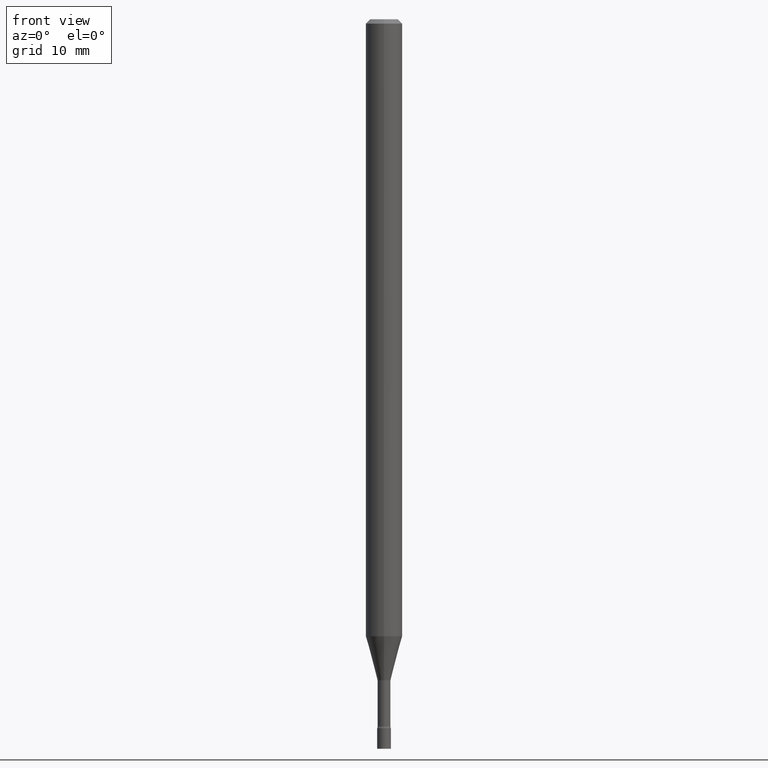
[diagram: clean part render]
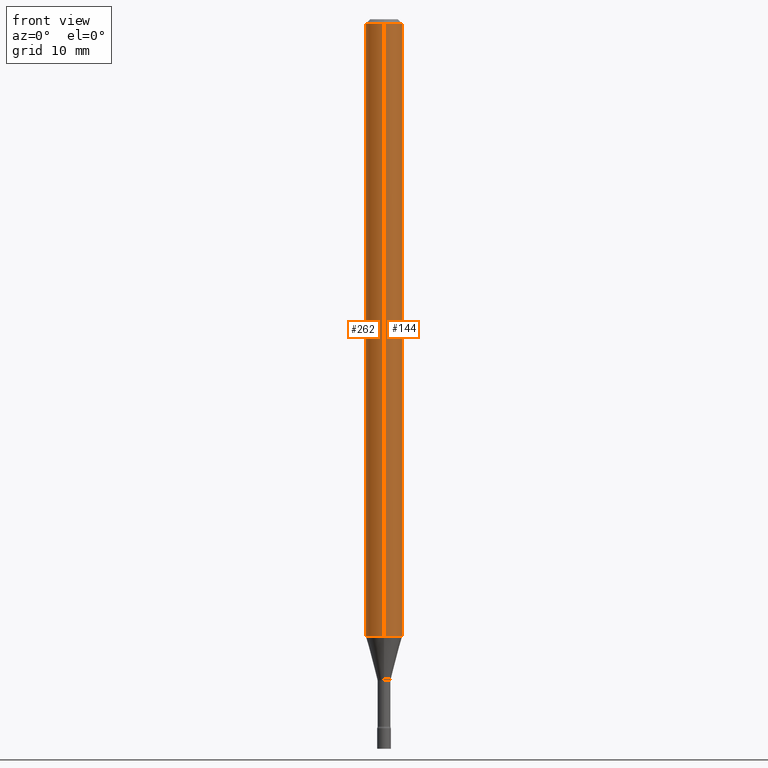
[diagram: same view with one multi-face feature highlighted, each face labeled with its STEP entity id]
A machine part, front view. The highlighted faces form ONE feature: a constant-radius fillet chain: 2 tangent blend faces with common blend radius 1.5875 mm. The faces share edges in the B-rep.
Their STEP definitions:
[1] entity #262 (Cylinder):
#9 = CARTESIAN_POINT ( 'NONE',  ( -4.364351673553912750E-16, -0.06250000000000005551, -0.01499999999999981209 ) ) ;
#38 = AXIS2_PLACEMENT_3D ( 'NONE', #363, #236, #398 ) ;
#92 = EDGE_CURVE ( 'NONE', #407, #179, #97, .T. ) ;
#96 = DIRECTION ( 'NONE',  ( -2.445459864664737566E-29, 3.491494143609276390E-15, 1.000000000000000000 ) ) ;
#97 = CIRCLE ( 'NONE', #38, 0.06250000000000000000 ) ;
#134 = CARTESIAN_POINT ( 'NONE',  ( 4.440892098501140893E-16, 0.06249999999999258926, -2.114225147374217961 ) ) ;
#136 = LINE ( 'NONE', #409, #454 ) ;
#140 = CYLINDRICAL_SURFACE ( 'NONE', #483, 0.06250000000000000000 ) ;
#151 = EDGE_CURVE ( 'NONE', #301, #407, #161, .T. ) ;
#159 = ORIENTED_EDGE ( 'NONE', *, *, #290, .T. ) ;
#161 = LINE ( 'NONE', #356, #437 ) ;
#170 = DIRECTION ( 'NONE',  ( -2.445459864664737566E-29, 3.491494143609276784E-15, 1.000000000000000000 ) ) ;
#179 = VERTEX_POINT ( 'NONE', #9 ) ;
#207 = DIRECTION ( 'NONE',  ( -6.982962677686265922E-15, -1.000000000000000000, 4.370956789862821150E-15 ) ) ;
#211 = CARTESIAN_POINT ( 'NONE',  ( 5.170252742768539848E-29, -7.381804720328540946E-15, -2.114225147374217961 ) ) ;
#220 = EDGE_CURVE ( 'NONE', #379, #179, #136, .T. ) ;
#236 = DIRECTION ( 'NONE',  ( -2.445459864664737566E-29, 3.491494143609276784E-15, 1.000000000000000000 ) ) ;
#247 = EDGE_LOOP ( 'NONE', ( #399, #159, #357, #396 ) ) ;
#262 = ADVANCED_FACE ( 'NONE', ( #499 ), #140, .T. ) ;
#290 = EDGE_CURVE ( 'NONE', #301, #379, #405, .T. ) ;
#298 = DIRECTION ( 'NONE',  ( -6.982962677686265922E-15, -1.000000000000000000, 3.491494143609276784E-15 ) ) ;
#301 = VERTEX_POINT ( 'NONE', #134 ) ;
#333 = DIRECTION ( 'NONE',  ( -2.445459864664737566E-29, 3.491494143609276784E-15, 1.000000000000000000 ) ) ;
#356 = CARTESIAN_POINT ( 'NONE',  ( 4.440892098500625669E-16, 0.06250000000000000000, -2.182183839755797990E-16 ) ) ;
#357 = ORIENTED_EDGE ( 'NONE', *, *, #220, .T. ) ;
#363 = CARTESIAN_POINT ( 'NONE',  ( 3.668189796997113601E-31, -5.237241215413926147E-17, -0.01500000000000003067 ) ) ;
#379 = VERTEX_POINT ( 'NONE', #469 ) ;
#380 = CARTESIAN_POINT ( 'NONE',  ( 4.440892098501146810E-16, 0.06249999999999995837, -0.01500000000000024751 ) ) ;
#385 = AXIS2_PLACEMENT_3D ( 'NONE', #211, #333, #207 ) ;
#396 = ORIENTED_EDGE ( 'NONE', *, *, #92, .F. ) ;
#398 = DIRECTION ( 'NONE',  ( -6.982962677686265922E-15, -1.000000000000000000, 3.483106191921935554E-15 ) ) ;
#399 = ORIENTED_EDGE ( 'NONE', *, *, #151, .F. ) ;
#405 = CIRCLE ( 'NONE', #385, 0.06250000000000000000 ) ;
#407 = VERTEX_POINT ( 'NONE', #380 ) ;
#409 = CARTESIAN_POINT ( 'NONE',  ( -4.364351673553916201E-16, -0.06250000000000000000, 2.182183839755797990E-16 ) ) ;
#437 = VECTOR ( 'NONE', #485, 39.37007874015748143 ) ;
#454 = VECTOR ( 'NONE', #96, 39.37007874015748143 ) ;
#469 = CARTESIAN_POINT ( 'NONE',  ( -4.364351673553400976E-16, -0.06250000000000741074, -2.114225147374217517 ) ) ;
#483 = AXIS2_PLACEMENT_3D ( 'NONE', #495, #170, #298 ) ;
#485 = DIRECTION ( 'NONE',  ( -2.445459864664737566E-29, 3.491494143609276390E-15, 1.000000000000000000 ) ) ;
#495 = CARTESIAN_POINT ( 'NONE',  ( 0.000000000000000000, 0.000000000000000000, 0.000000000000000000 ) ) ;
#499 = FACE_OUTER_BOUND ( 'NONE', #247, .T. ) ;
[2] entity #144 (Cylinder):
#9 = CARTESIAN_POINT ( 'NONE',  ( -4.364351673553912750E-16, -0.06250000000000005551, -0.01499999999999981209 ) ) ;
#70 = CIRCLE ( 'NONE', #227, 0.06250000000000000000 ) ;
#83 = DIRECTION ( 'NONE',  ( -6.982962677686265922E-15, -1.000000000000000000, 4.370956789862821150E-15 ) ) ;
#96 = DIRECTION ( 'NONE',  ( -2.445459864664737566E-29, 3.491494143609276390E-15, 1.000000000000000000 ) ) ;
#119 = DIRECTION ( 'NONE',  ( -2.445459864664737566E-29, 3.491494143609276784E-15, 1.000000000000000000 ) ) ;
#127 = ORIENTED_EDGE ( 'NONE', *, *, #220, .F. ) ;
#131 = AXIS2_PLACEMENT_3D ( 'NONE', #401, #358, #434 ) ;
#134 = CARTESIAN_POINT ( 'NONE',  ( 4.440892098501140893E-16, 0.06249999999999258926, -2.114225147374217961 ) ) ;
#136 = LINE ( 'NONE', #409, #454 ) ;
#144 = ADVANCED_FACE ( 'NONE', ( #231 ), #392, .T. ) ;
#151 = EDGE_CURVE ( 'NONE', #301, #407, #161, .T. ) ;
#158 = AXIS2_PLACEMENT_3D ( 'NONE', #246, #331, #178 ) ;
#161 = LINE ( 'NONE', #356, #437 ) ;
#178 = DIRECTION ( 'NONE',  ( -6.982962677686265922E-15, -1.000000000000000000, 3.483106191921935554E-15 ) ) ;
#179 = VERTEX_POINT ( 'NONE', #9 ) ;
#197 = CARTESIAN_POINT ( 'NONE',  ( 5.170252742768539848E-29, -7.381804720328540946E-15, -2.114225147374217961 ) ) ;
#208 = ORIENTED_EDGE ( 'NONE', *, *, #502, .T. ) ;
#220 = EDGE_CURVE ( 'NONE', #379, #179, #136, .T. ) ;
#227 = AXIS2_PLACEMENT_3D ( 'NONE', #197, #119, #83 ) ;
#231 = FACE_OUTER_BOUND ( 'NONE', #459, .T. ) ;
#246 = CARTESIAN_POINT ( 'NONE',  ( 3.668189796997113601E-31, -5.237241215413926147E-17, -0.01500000000000003067 ) ) ;
#248 = EDGE_CURVE ( 'NONE', #179, #407, #260, .T. ) ;
#260 = CIRCLE ( 'NONE', #158, 0.06250000000000000000 ) ;
#301 = VERTEX_POINT ( 'NONE', #134 ) ;
#331 = DIRECTION ( 'NONE',  ( -2.445459864664737566E-29, 3.491494143609276784E-15, 1.000000000000000000 ) ) ;
#356 = CARTESIAN_POINT ( 'NONE',  ( 4.440892098500625669E-16, 0.06250000000000000000, -2.182183839755797990E-16 ) ) ;
#358 = DIRECTION ( 'NONE',  ( -2.445459864664737566E-29, 3.491494143609276784E-15, 1.000000000000000000 ) ) ;
#379 = VERTEX_POINT ( 'NONE', #469 ) ;
#380 = CARTESIAN_POINT ( 'NONE',  ( 4.440892098501146810E-16, 0.06249999999999995837, -0.01500000000000024751 ) ) ;
#392 = CYLINDRICAL_SURFACE ( 'NONE', #131, 0.06250000000000000000 ) ;
#401 = CARTESIAN_POINT ( 'NONE',  ( 0.000000000000000000, 0.000000000000000000, 0.000000000000000000 ) ) ;
#407 = VERTEX_POINT ( 'NONE', #380 ) ;
#409 = CARTESIAN_POINT ( 'NONE',  ( -4.364351673553916201E-16, -0.06250000000000000000, 2.182183839755797990E-16 ) ) ;
#434 = DIRECTION ( 'NONE',  ( -6.982962677686265922E-15, -1.000000000000000000, 3.491494143609276784E-15 ) ) ;
#437 = VECTOR ( 'NONE', #485, 39.37007874015748143 ) ;
#443 = ORIENTED_EDGE ( 'NONE', *, *, #248, .F. ) ;
#449 = ORIENTED_EDGE ( 'NONE', *, *, #151, .T. ) ;
#454 = VECTOR ( 'NONE', #96, 39.37007874015748143 ) ;
#459 = EDGE_LOOP ( 'NONE', ( #208, #449, #443, #127 ) ) ;
#469 = CARTESIAN_POINT ( 'NONE',  ( -4.364351673553400976E-16, -0.06250000000000741074, -2.114225147374217517 ) ) ;
#485 = DIRECTION ( 'NONE',  ( -2.445459864664737566E-29, 3.491494143609276390E-15, 1.000000000000000000 ) ) ;
#502 = EDGE_CURVE ( 'NONE', #379, #301, #70, .T. ) ;